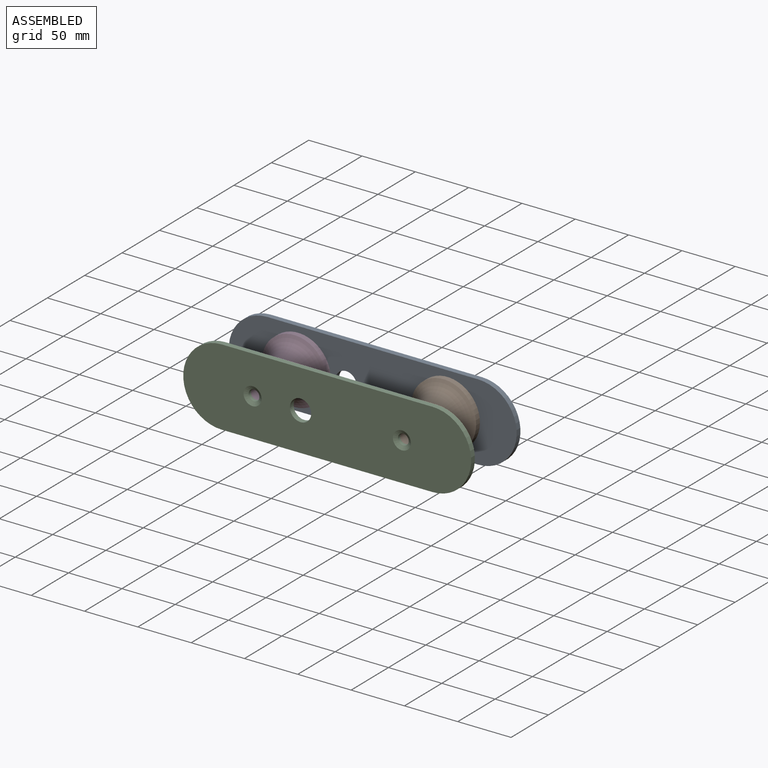
[diagram: assembled view]
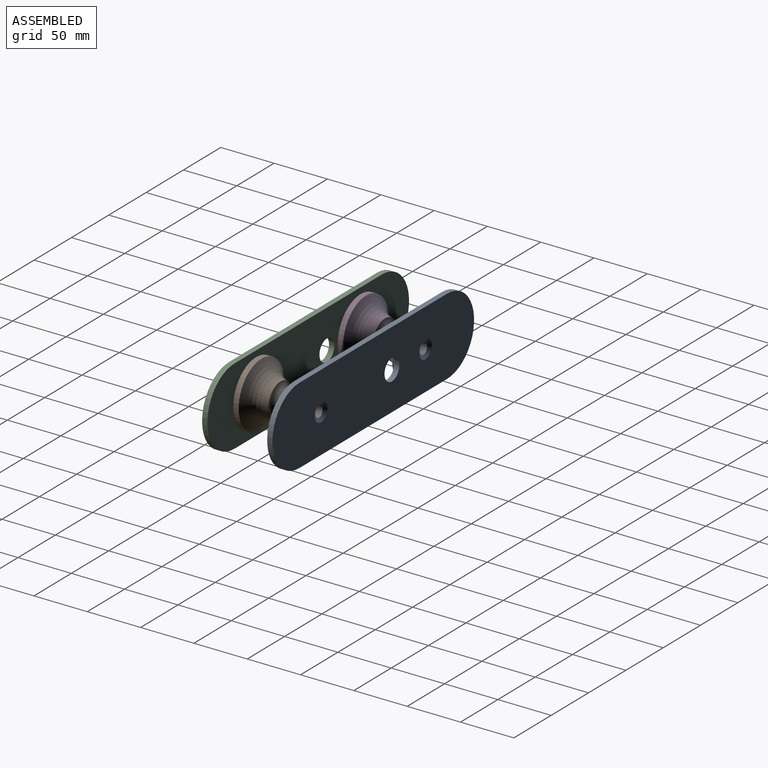
[diagram: assembled view, second angle]
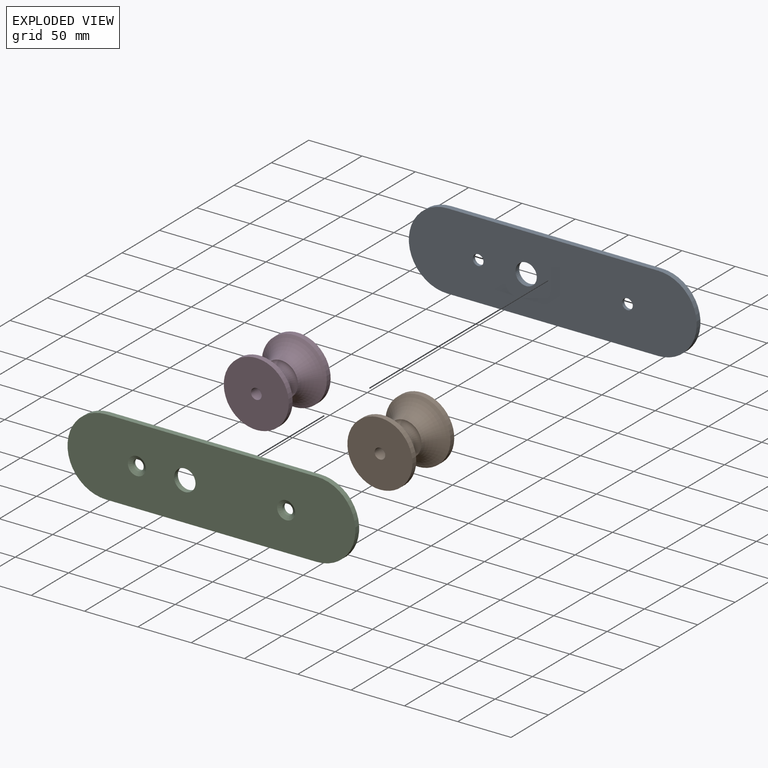
[diagram: exploded view]
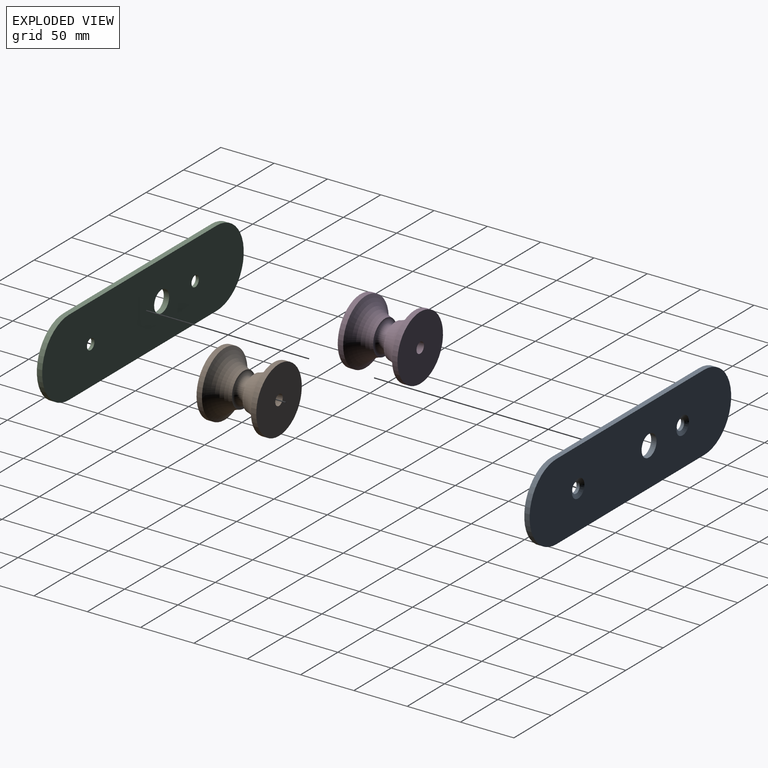
[diagram: exploded view, second angle]
ASSEMBLY  parts=4 mates=7
PART A: 11 faces, bbox 270x5x72.3 mm
  f0: plane 197.75x5mm, normal (0,0,1), area 988.7mm2, adj f1,f5,f7,f8
  f1: cylinder r=36.12mm len=72.25mm, axis (0,1,0), area 567.5mm2, adj f0,f2,f7,f8
  f2: plane 197.75x5mm, normal (0,0,-1), area 988.7mm2, adj f1,f5,f7,f8
  f3: cylinder r=5mm len=10mm, axis (0,1,0), area 94.2mm2, adj f8,f10
  f4: cylinder r=10mm len=20mm, axis (0,1,0), area 314.2mm2, adj f7,f8
  f5: cylinder r=36.12mm len=72.25mm, axis (0,1,0), area 567.5mm2, adj f0,f2,f7,f8
  f6: cylinder r=5mm len=10mm, axis (0,1,0), area 94.2mm2, adj f8,f9
  f7: plane 270x72.25mm, normal (0,-1,0), area 17623mm2, adj f0,f1,f2,f4,f5,f9,f10
  f8: plane 270x72.25mm, normal (0,1,0), area 17916mm2, adj f0,f1,f2,f3,f4,f5,f6
  f9: cone r=5mm half-angle=60deg, axis (0,-1,0), area 169.2mm2, adj f6,f7
  f10: cone r=5mm half-angle=60deg, axis (0,-1,0), area 169.2mm2, adj f3,f7
PART B: 8 faces, bbox 87.7x56x87.7 mm
  f0: cylinder r=5mm len=56mm, axis (0,-1,0), area 1759.3mm2, adj f1,f7
  f1: plane 61x61mm, normal (0,-1,0), area 2843.9mm2, adj f0,f2
  f2: cylinder r=30.5mm len=61mm, axis (0,-1,0), area 974.9mm2, adj f1,f3
  f3: torus R=40.5mm, axis (0,-1,0), area 3282.9mm2, adj f2,f4
  f4: torus R=15.5mm, axis (0,-1,0), area 1314.8mm2, adj f3,f5
  f5: torus R=40.5mm, axis (0,-1,0), area 3282.9mm2, adj f4,f6
  f6: cylinder r=30.5mm len=61mm, axis (0,-1,0), area 974.9mm2, adj f5,f7
  f7: plane 61x61mm, normal (0,1,0), area 2843.9mm2, adj f0,f6
PART C: same geometry as A
PART D: same geometry as B
PLACE A rot(axis=(1,0,0),180deg) t=(-123.64,184.09,-221.42)mm
PLACE B rot(axis=(0,-1,0),33.1deg) t=(-28.64,156.09,-221.42)mm
PLACE C rot(axis=(0,1,0),0deg) t=(-123.64,128.09,-221.42)mm
PLACE D rot(axis=(0,-1,0),33.1deg) t=(-168.64,156.09,-221.42)mm
MATE cylindrical D.f0 <-> A.f3  axis (0,1,0) through (-168.64,184.09,-221.42)mm
MATE planar A.f6 <-> B.f0  axis (0,-1,0) through (-28.64,184.09,-221.42)mm
MATE planar C.f6 <-> B.f0  axis (0,1,0) through (-28.64,128.09,-221.42)mm
MATE cylindrical A.f6 <-> B.f0  axis (0,-1,0) through (-28.64,184.09,-221.42)mm
MATE cylindrical B.f0 <-> C.f6  axis (0,-1,0) through (-28.64,128.09,-221.42)mm
MATE cylindrical D.f0 <-> C.f3  axis (0,-1,0) through (-168.64,128.09,-221.42)mm
MATE planar A.f3 <-> D.f0  axis (0,-1,0) through (-168.64,184.09,-221.42)mm
